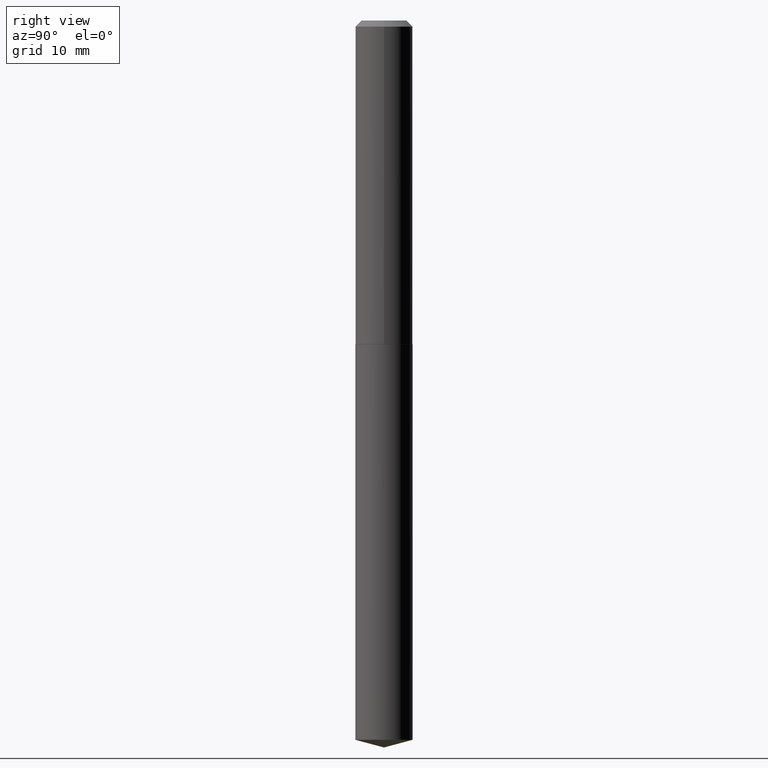
[diagram: clean part render]
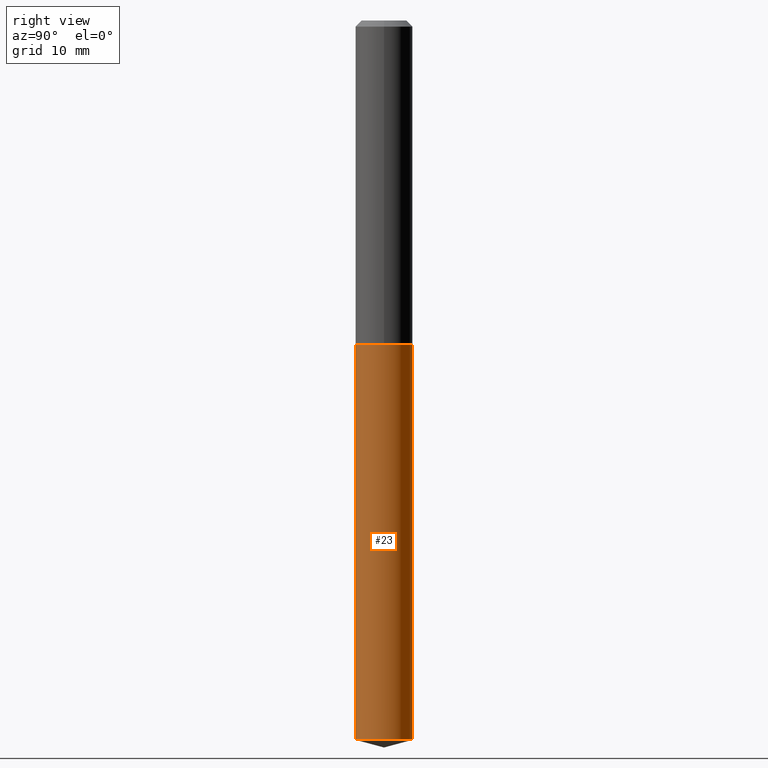
[diagram: same view with one face highlighted and labeled with its STEP entity id]
A machine part, right view. The second image highlights one B-rep face of the part: STEP entity #23.
In plain terms, the highlighted cylindrical surface (edge-blend (fillet) strip) has radius 3.7465 mm, axis along (-0, 0, 1).
Its self-contained STEP definition (entity closure, byte-faithful):
#18 = DIRECTION ( 'NONE',  ( -2.445492420700299063E-29, 3.491447521513378388E-15, 1.000000000000000000 ) ) ;
#23 = ADVANCED_FACE ( 'NONE', ( #267 ), #134, .T. ) ;
#26 = DIRECTION ( 'NONE',  ( -6.982962677686265922E-15, -1.000000000000000000, 3.704200669375272254E-15 ) ) ;
#37 = VERTEX_POINT ( 'NONE', #289 ) ;
#41 = LINE ( 'NONE', #116, #382 ) ;
#45 = VERTEX_POINT ( 'NONE', #345 ) ;
#75 = CARTESIAN_POINT ( 'NONE',  ( 4.083932906329178363E-29, -5.830773835868053845E-15, -1.670000000000000151 ) ) ;
#79 = EDGE_CURVE ( 'NONE', #123, #375, #41, .T. ) ;
#84 = EDGE_CURVE ( 'NONE', #37, #375, #120, .T. ) ;
#90 = DIRECTION ( 'NONE',  ( -2.445492420700299063E-29, 3.491447521513378388E-15, 1.000000000000000000 ) ) ;
#91 = ORIENTED_EDGE ( 'NONE', *, *, #132, .T. ) ;
#93 = ORIENTED_EDGE ( 'NONE', *, *, #84, .F. ) ;
#111 = CARTESIAN_POINT ( 'NONE',  ( 9.073905152800398852E-29, -1.295499392540462134E-14, -3.710477494116410480 ) ) ;
#116 = CARTESIAN_POINT ( 'NONE',  ( 1.048050535246188542E-15, 0.1474999999999941636, -1.670000000000000817 ) ) ;
#120 = CIRCLE ( 'NONE', #390, 0.1474999999999999922 ) ;
#123 = VERTEX_POINT ( 'NONE', #323 ) ;
#132 = EDGE_CURVE ( 'NONE', #45, #123, #348, .T. ) ;
#134 = CYLINDRICAL_SURFACE ( 'NONE', #190, 0.1474999999999999922 ) ;
#146 = VECTOR ( 'NONE', #90, 39.37007874015748143 ) ;
#151 = AXIS2_PLACEMENT_3D ( 'NONE', #111, #214, #355 ) ;
#155 = LINE ( 'NONE', #277, #146 ) ;
#190 = AXIS2_PLACEMENT_3D ( 'NONE', #349, #197, #281 ) ;
#197 = DIRECTION ( 'NONE',  ( -2.445492420700299063E-29, 3.491447521513378388E-15, 1.000000000000000000 ) ) ;
#200 = CARTESIAN_POINT ( 'NONE',  ( 1.048050535246238832E-15, 0.1474999999999941636, -1.670000000000000817 ) ) ;
#214 = DIRECTION ( 'NONE',  ( -2.445492420700299063E-29, 3.491447521513378388E-15, 1.000000000000000000 ) ) ;
#252 = ORIENTED_EDGE ( 'NONE', *, *, #79, .T. ) ;
#253 = ORIENTED_EDGE ( 'NONE', *, *, #301, .F. ) ;
#267 = FACE_OUTER_BOUND ( 'NONE', #305, .T. ) ;
#277 = CARTESIAN_POINT ( 'NONE',  ( -1.029986994958683358E-15, -0.1475000000000058209, -1.669999999999999707 ) ) ;
#281 = DIRECTION ( 'NONE',  ( -6.982962677686265922E-15, -1.000000000000000000, 3.704200669375272254E-15 ) ) ;
#289 = CARTESIAN_POINT ( 'NONE',  ( -1.029986994958683358E-15, -0.1475000000000058209, -1.669999999999999707 ) ) ;
#301 = EDGE_CURVE ( 'NONE', #45, #37, #155, .T. ) ;
#305 = EDGE_LOOP ( 'NONE', ( #91, #252, #93, #253 ) ) ;
#323 = CARTESIAN_POINT ( 'NONE',  ( 1.048050535246238044E-15, 0.1474999999999870026, -3.710477494116410924 ) ) ;
#345 = CARTESIAN_POINT ( 'NONE',  ( -1.029986994958633266E-15, -0.1475000000000129263, -3.710477494116409591 ) ) ;
#348 = CIRCLE ( 'NONE', #151, 0.1474999999999999922 ) ;
#349 = CARTESIAN_POINT ( 'NONE',  ( 4.083932906329178363E-29, -5.830773835868053845E-15, -1.670000000000000151 ) ) ;
#355 = DIRECTION ( 'NONE',  ( -6.982962677686265922E-15, -1.000000000000000000, 3.704200669375272254E-15 ) ) ;
#375 = VERTEX_POINT ( 'NONE', #200 ) ;
#381 = DIRECTION ( 'NONE',  ( -2.445492420700299063E-29, 3.491447521513378388E-15, 1.000000000000000000 ) ) ;
#382 = VECTOR ( 'NONE', #381, 39.37007874015748143 ) ;
#390 = AXIS2_PLACEMENT_3D ( 'NONE', #75, #18, #26 ) ;